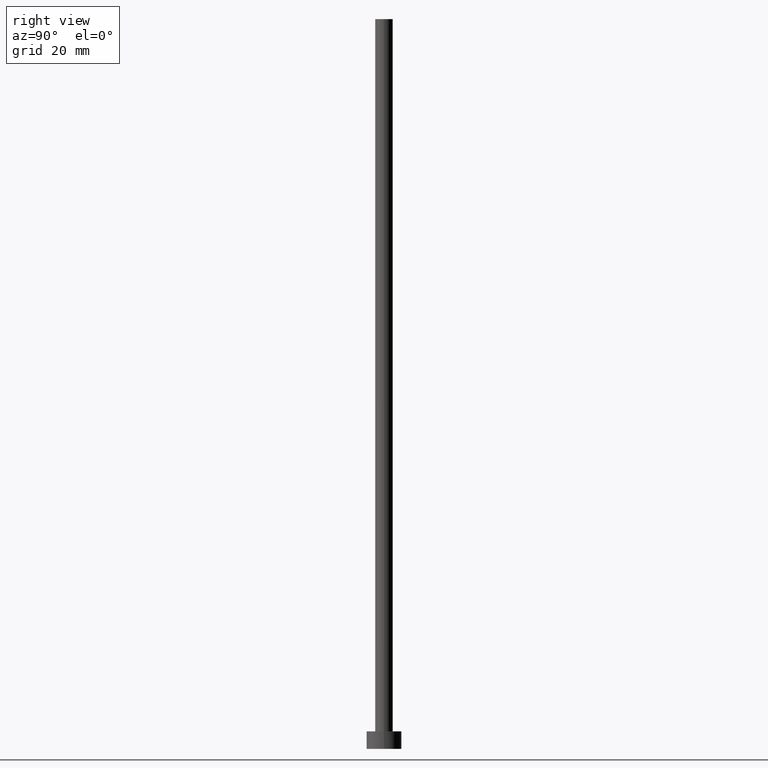
[diagram: clean part render]
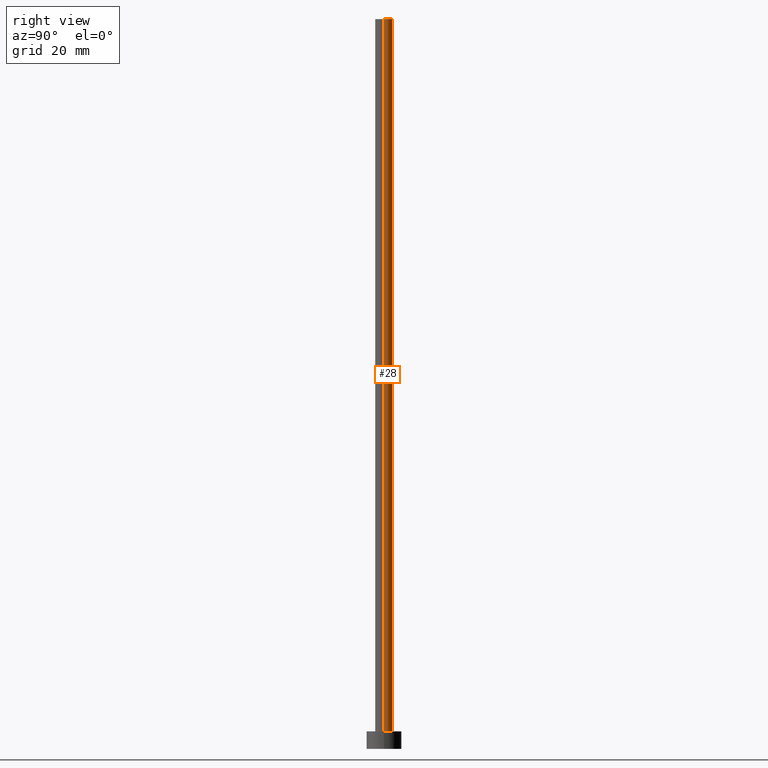
[diagram: same view with one face highlighted and labeled with its STEP entity id]
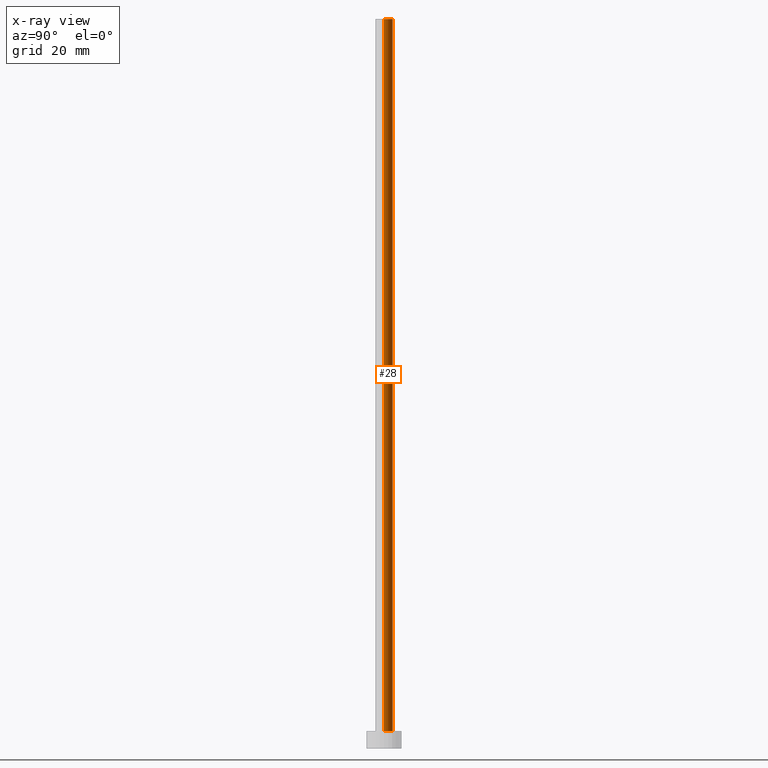
[diagram: x-ray of the same camera — body ghosted, the highlighted face saturated]
A machine part, right view. The second image highlights one B-rep face of the part: STEP entity #28.
The next image is the same camera in x-ray: the body ghosted, the highlighted face saturated — about 0% of this face is hidden behind the body in this view.
In plain terms, the highlighted cylindrical surface (edge-blend (fillet) strip) has radius 1.5 mm, axis along (-0, -0, -1).
Its self-contained STEP definition (entity closure, byte-faithful):
#1 = LINE ( 'NONE', #57, #152 ) ;
#6 = EDGE_CURVE ( 'NONE', #211, #42, #1, .T. ) ;
#16 = CARTESIAN_POINT ( 'NONE',  ( 1.500000000000000222, 1.836970198721029934E-16, 125.0000000000000000 ) ) ;
#21 = CARTESIAN_POINT ( 'NONE',  ( -1.500000000000000222, 0.000000000000000000, 3.000000000000000000 ) ) ;
#22 = DIRECTION ( 'NONE',  ( 0.000000000000000000, 0.000000000000000000, 1.000000000000000000 ) ) ;
#28 = ADVANCED_FACE ( 'NONE', ( #196 ), #235, .T. ) ;
#32 = VERTEX_POINT ( 'NONE', #189 ) ;
#33 = EDGE_CURVE ( 'NONE', #179, #211, #102, .T. ) ;
#39 = CARTESIAN_POINT ( 'NONE',  ( 0.000000000000000000, 0.000000000000000000, 125.0000000000000000 ) ) ;
#41 = ORIENTED_EDGE ( 'NONE', *, *, #51, .T. ) ;
#42 = VERTEX_POINT ( 'NONE', #21 ) ;
#51 = EDGE_CURVE ( 'NONE', #179, #32, #116, .T. ) ;
#54 = DIRECTION ( 'NONE',  ( -1.000000000000000000, 0.000000000000000000, 0.000000000000000000 ) ) ;
#57 = CARTESIAN_POINT ( 'NONE',  ( -1.500000000000000222, 0.000000000000000000, 125.0000000000000000 ) ) ;
#64 = EDGE_LOOP ( 'NONE', ( #123, #41, #166, #65 ) ) ;
#65 = ORIENTED_EDGE ( 'NONE', *, *, #6, .F. ) ;
#76 = DIRECTION ( 'NONE',  ( 1.000000000000000000, 0.000000000000000000, 0.000000000000000000 ) ) ;
#77 = CARTESIAN_POINT ( 'NONE',  ( 0.000000000000000000, 0.000000000000000000, 3.000000000000000000 ) ) ;
#81 = DIRECTION ( 'NONE',  ( 1.000000000000000000, 0.000000000000000000, 0.000000000000000000 ) ) ;
#93 = DIRECTION ( 'NONE',  ( -0.000000000000000000, -0.000000000000000000, -1.000000000000000000 ) ) ;
#102 = CIRCLE ( 'NONE', #162, 1.500000000000000222 ) ;
#111 = CARTESIAN_POINT ( 'NONE',  ( 0.000000000000000000, 0.000000000000000000, 125.0000000000000000 ) ) ;
#116 = LINE ( 'NONE', #194, #249 ) ;
#123 = ORIENTED_EDGE ( 'NONE', *, *, #33, .F. ) ;
#139 = CARTESIAN_POINT ( 'NONE',  ( -1.500000000000000222, 0.000000000000000000, 125.0000000000000000 ) ) ;
#141 = DIRECTION ( 'NONE',  ( -0.000000000000000000, -0.000000000000000000, -1.000000000000000000 ) ) ;
#152 = VECTOR ( 'NONE', #141, 1000.000000000000000 ) ;
#162 = AXIS2_PLACEMENT_3D ( 'NONE', #39, #254, #76 ) ;
#164 = CIRCLE ( 'NONE', #183, 1.500000000000000222 ) ;
#166 = ORIENTED_EDGE ( 'NONE', *, *, #209, .T. ) ;
#179 = VERTEX_POINT ( 'NONE', #16 ) ;
#183 = AXIS2_PLACEMENT_3D ( 'NONE', #77, #22, #81 ) ;
#189 = CARTESIAN_POINT ( 'NONE',  ( 1.500000000000000222, 1.836970198721029934E-16, 3.000000000000000000 ) ) ;
#194 = CARTESIAN_POINT ( 'NONE',  ( 1.500000000000000222, 1.836970198721029934E-16, 125.0000000000000000 ) ) ;
#196 = FACE_OUTER_BOUND ( 'NONE', #64, .T. ) ;
#209 = EDGE_CURVE ( 'NONE', #32, #42, #164, .T. ) ;
#211 = VERTEX_POINT ( 'NONE', #139 ) ;
#219 = DIRECTION ( 'NONE',  ( -0.000000000000000000, -0.000000000000000000, -1.000000000000000000 ) ) ;
#221 = AXIS2_PLACEMENT_3D ( 'NONE', #111, #219, #54 ) ;
#235 = CYLINDRICAL_SURFACE ( 'NONE', #221, 1.500000000000000222 ) ;
#249 = VECTOR ( 'NONE', #93, 1000.000000000000000 ) ;
#254 = DIRECTION ( 'NONE',  ( 0.000000000000000000, 0.000000000000000000, 1.000000000000000000 ) ) ;